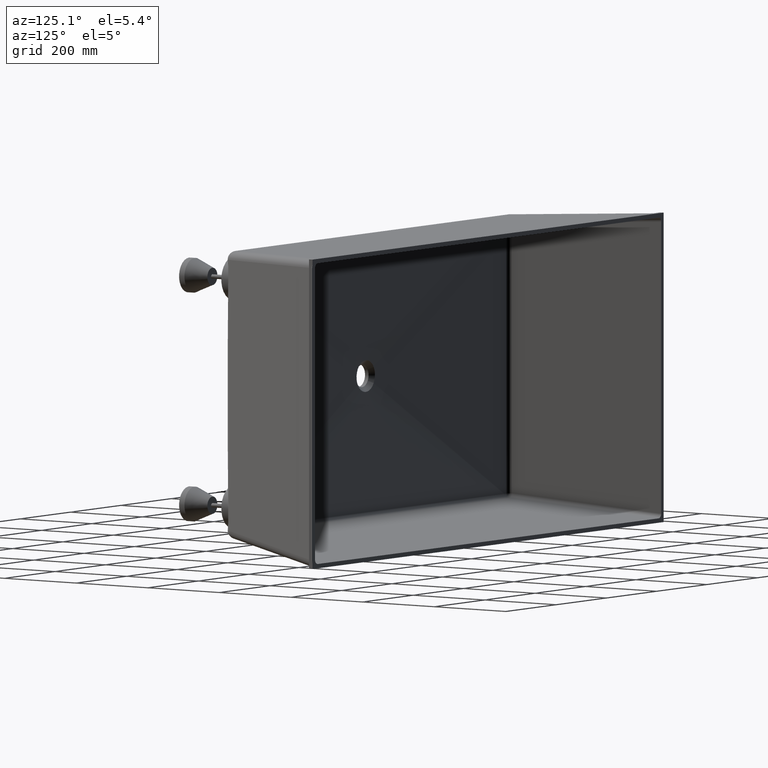
[diagram: clean part render]
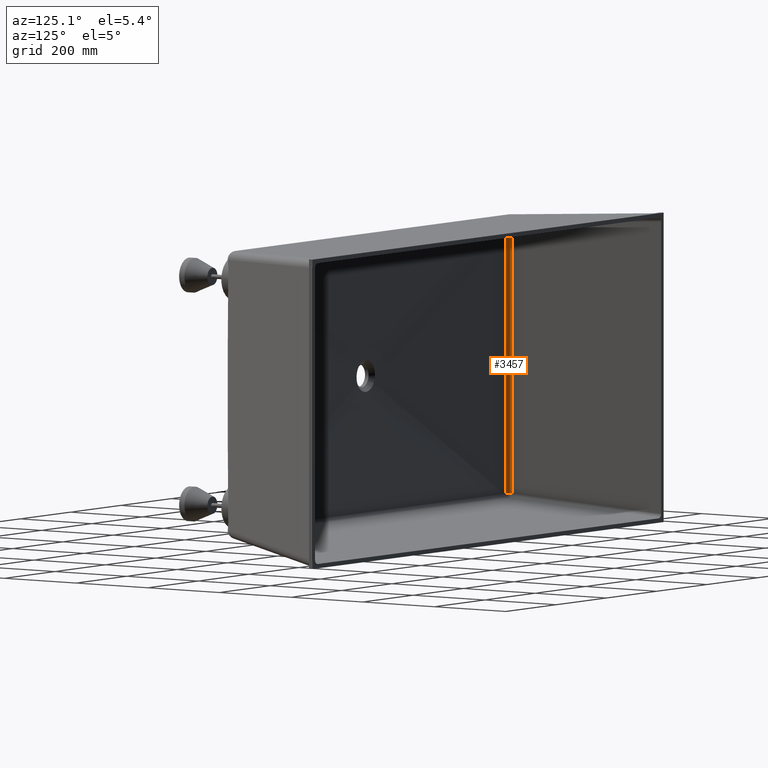
[diagram: same view with one face highlighted and labeled with its STEP entity id]
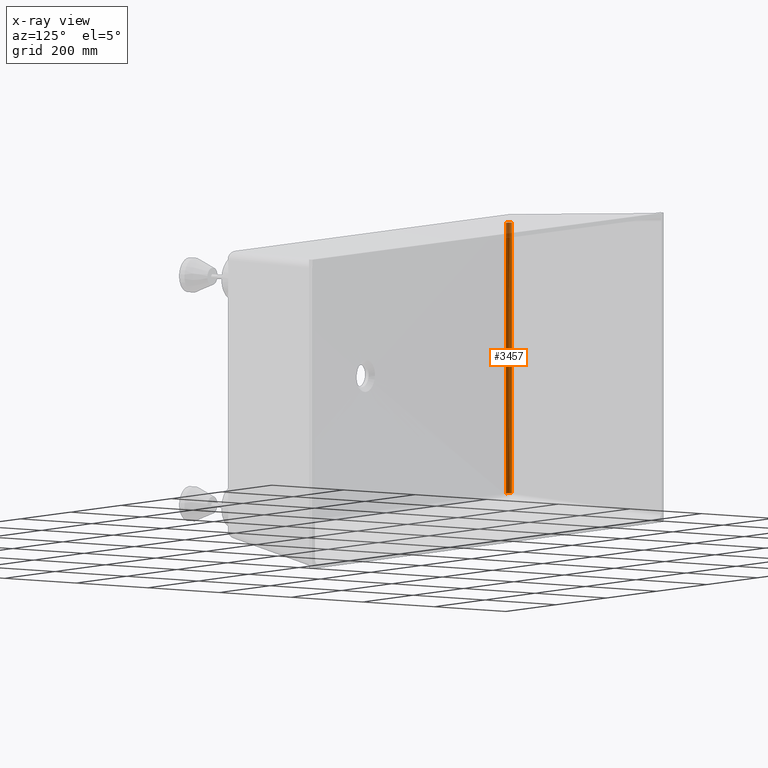
[diagram: x-ray of the same camera — body ghosted, the highlighted face saturated]
A machine part, auxiliary view. The second image highlights one B-rep face of the part: STEP entity #3457.
The next image is the same camera in x-ray: the body ghosted, the highlighted face saturated — about 6% of this face is hidden behind the body in this view.
In plain terms, the highlighted face is a freeform B-spline surface patch.
Its self-contained STEP definition (entity closure, byte-faithful):
#50 = EDGE_CURVE ( 'NONE', #7808, #3085, #7136, .T. ) ;
#440 = DIRECTION ( 'NONE',  ( 1.020781007932282800E-007, -8.635807327107351700E-006, 0.9999999999627063900 ) ) ;
#693 = CARTESIAN_POINT ( 'NONE',  ( -550.1141784327466000, -413.3405045896437900, 310.5604278837050700 ) ) ;
#858 = CARTESIAN_POINT ( 'NONE',  ( -550.1141676855836500, -413.3414137996292700, 205.2767003580649400 ) ) ;
#870 = CARTESIAN_POINT ( 'NONE',  ( -550.1141611342575300, -413.3419680418192600, 99.99297282787786400 ) ) ;
#911 = CARTESIAN_POINT ( 'NONE',  ( -550.1141613478429200, -413.3419499724873300, -5.290754701687279600 ) ) ;
#941 = DIRECTION ( 'NONE',  ( 0.0000000000000000000, -0.9999999999627113800, -8.635807324797160800E-006 ) ) ;
#1079 = CARTESIAN_POINT ( 'NONE',  ( -550.1141615542729800, -413.3419325085062000, -107.0473124301658500 ) ) ;
#1398 = CARTESIAN_POINT ( 'NONE',  ( -550.1141680456304400, -413.3413833396704100, -208.8038701590200200 ) ) ;
#1557 = CARTESIAN_POINT ( 'NONE',  ( -550.1141784327466000, -413.3405045896437300, -310.5604278837051900 ) ) ;
#1604 = CARTESIAN_POINT ( 'NONE',  ( -540.3422793518340100, -423.2197236096835100, -310.5605141962340700 ) ) ;
#1646 = CARTESIAN_POINT ( 'NONE',  ( -540.3428896732014000, -423.2202885190635600, -243.5201713989539200 ) ) ;
#1677 = CARTESIAN_POINT ( 'NONE',  ( -540.3433579782343900, -423.2207202013905200, -176.4798285986069000 ) ) ;
#1710 = CARTESIAN_POINT ( 'NONE',  ( -540.3436043541514700, -423.2209471511128000, -109.4394857970055000 ) ) ;
#1814 = CARTESIAN_POINT ( 'NONE',  ( -540.3438003562655500, -423.2211276988946900, -56.10615246397340200 ) ) ;
#1849 = CARTESIAN_POINT ( 'NONE',  ( -540.3438556956240300, -423.2211785725014600, -2.772819129610117000 ) ) ;
#1891 = CARTESIAN_POINT ( 'NONE',  ( -540.3437637616460700, -423.2210939390817000, 50.56051420394135900 ) ) ;
#1923 = CARTESIAN_POINT ( 'NONE',  ( -540.3436718276681200, -423.2210093056619400, 103.8938475374141700 ) ) ;
#1963 = CARTESIAN_POINT ( 'NONE',  ( -540.3434328695517500, -423.2207893935723200, 157.2271808706606200 ) ) ;
#1998 = CARTESIAN_POINT ( 'NONE',  ( -540.3430751654680100, -423.2204592235508500, 210.5605142020583000 ) ) ;
#2168 = CARTESIAN_POINT ( 'NONE',  ( -540.3428963134260800, -423.2202941385400500, 237.2271808676366900 ) ) ;
#2200 = CARTESIAN_POINT ( 'NONE',  ( -540.3426885173420300, -423.2201021596154600, 263.8938475328736200 ) ) ;
#2324 = CARTESIAN_POINT ( 'NONE',  ( -540.3424571824512000, -423.2198881611917600, 290.5605141977007400 ) ) ;
#2390 = CARTESIAN_POINT ( 'NONE',  ( -540.3423993487284600, -423.2198346615858800, 297.2271808639021600 ) ) ;
#2610 = CARTESIAN_POINT ( 'NONE',  ( -540.3422793518340100, -423.2197236096835100, 310.5605141962340100 ) ) ;
#2651 = CARTESIAN_POINT ( 'NONE',  ( -540.3423400437837900, -423.2197797857467100, 303.8938475300800500 ) ) ;
#2717 = CARTESIAN_POINT ( 'NONE',  ( -550.1141784327469400, -413.3405045896437300, 310.5604278837050700 ) ) ;
#2736 = CARTESIAN_POINT ( 'NONE',  ( -549.9999994333429600, -423.0000479392085100, 310.5605113133154900 ) ) ;
#2754 = CARTESIAN_POINT ( 'NONE',  ( -540.3422793518342400, -423.2197236096835100, 310.5605141962340100 ) ) ;
#2787 = CARTESIAN_POINT ( 'NONE',  ( -550.1141572984345200, -413.3422925524719200, 103.5201426261042600 ) ) ;
#2809 = CARTESIAN_POINT ( 'NONE',  ( -549.9999999389873400, -422.9999931917326400, 103.5405620196022200 ) ) ;
#2877 = CARTESIAN_POINT ( 'NONE',  ( -540.3441641310375900, -423.2214682178985800, 103.5201893882881900 ) ) ;
#2934 = CARTESIAN_POINT ( 'NONE',  ( -550.1141572982497800, -413.3422925680788500, -103.5201426261459300 ) ) ;
#2940 = ORIENTED_EDGE ( 'NONE', *, *, #3384, .T. ) ;
#3085 = VERTEX_POINT ( 'NONE', #4618 ) ;
#3115 = CARTESIAN_POINT ( 'NONE',  ( -550.0000000768899300, -422.9999932549379800, -103.5405620196423100 ) ) ;
#3142 = CARTESIAN_POINT ( 'NONE',  ( -540.3441642225419600, -423.2214682158182800, -103.5201893883299400 ) ) ;
#3165 = CARTESIAN_POINT ( 'NONE',  ( -550.1141784327466000, -413.3405045896436700, -310.5604278837051900 ) ) ;
#3200 = CARTESIAN_POINT ( 'NONE',  ( -540.3422793518340100, -423.2197236096834600, -310.5605141962341200 ) ) ;
#3369 = CARTESIAN_POINT ( 'NONE',  ( -549.9999994333427400, -423.0000479392084000, -310.5605113133156600 ) ) ;
#3384 = EDGE_CURVE ( 'NONE', #5100, #3085, #4221, .T. ) ;
#3425 = EDGE_CURVE ( 'NONE', #7808, #6032, #8624, .T. ) ;
#3457 = ADVANCED_FACE ( 'NONE', ( #5856 ), #5875, .F. ) ;
#4221 = B_SPLINE_CURVE_WITH_KNOTS ( 'NONE', 3,
 ( #2610, #2651, #2390, #2324, #2200, #2168, #1998, #1963, #1923, #1891, #1849, #1814, #1710, #1677, #1646, #1604 ),
 .UNSPECIFIED., .F., .F.,
 ( 4, 3, 3, 3, 3, 4 ),
 ( 0.0000000000000000000, 0.02000000000000077400, 0.1000000000001323900, 0.2600000000018211600, 0.4200000000038537400, 0.6211210284126004200 ),
 .UNSPECIFIED. ) ;
#4618 = CARTESIAN_POINT ( 'NONE',  ( -540.3422793518340100, -423.2197236096835100, -310.5605141962340700 ) ) ;
#5100 = VERTEX_POINT ( 'NONE', #5561 ) ;
#5561 = CARTESIAN_POINT ( 'NONE',  ( -540.3422793518340100, -423.2197236096835100, 310.5605141962340100 ) ) ;
#5628 = AXIS2_PLACEMENT_3D ( 'NONE', #9649, #9614, #9588 ) ;
#5674 = EDGE_CURVE ( 'NONE', #6032, #5100, #7520, .T. ) ;
#5856 = FACE_OUTER_BOUND ( 'NONE', #8740, .T. ) ;
#5875 =( BOUNDED_SURFACE ( )  B_SPLINE_SURFACE ( 3, 2, ( 
 ( #3200, #3369, #3165 ),
 ( #3142, #3115, #2934 ),
 ( #2877, #2809, #2787 ),
 ( #2754, #2736, #2717 ) ),
 .UNSPECIFIED., .F., .F., .F. ) 
 B_SPLINE_SURFACE_WITH_KNOTS ( ( 4, 4 ),
 ( 3, 3 ),
 ( 0.0000000000000000000, 0.6211208557742108300 ),
 ( 0.0000000000000000000, 1.000000000000000000 ),
 .UNSPECIFIED. ) 
 GEOMETRIC_REPRESENTATION_ITEM ( )  RATIONAL_B_SPLINE_SURFACE ( (
 ( 1.000000000000000000, 0.7192200982645947600, 1.000000000000000000),
 ( 1.000000000000000000, 0.7192908814497933600, 1.000000000000000000),
 ( 1.000000000000000000, 0.7192908814497925900, 1.000000000000000000),
 ( 1.000000000000000000, 0.7192200982645889900, 1.000000000000000000) ) ) 
 REPRESENTATION_ITEM ( '' )  SURFACE ( )  );
#6032 = VERTEX_POINT ( 'NONE', #8417 ) ;
#6234 = AXIS2_PLACEMENT_3D ( 'NONE', #7614, #440, #941 ) ;
#7136 = CIRCLE ( 'NONE', #6234, 10.00000000000002700 ) ;
#7435 = CARTESIAN_POINT ( 'NONE',  ( -550.1141784327466000, -413.3405045896437300, -310.5604278837051900 ) ) ;
#7520 = CIRCLE ( 'NONE', #5628, 10.00000000000002700 ) ;
#7614 = CARTESIAN_POINT ( 'NONE',  ( -540.1148769606696800, -413.2223095367822900, -310.5604278837051900 ) ) ;
#7808 = VERTEX_POINT ( 'NONE', #7435 ) ;
#8022 = ORIENTED_EDGE ( 'NONE', *, *, #5674, .T. ) ;
#8417 = CARTESIAN_POINT ( 'NONE',  ( -550.1141784327466000, -413.3405045896437900, 310.5604278837050700 ) ) ;
#8605 = ORIENTED_EDGE ( 'NONE', *, *, #50, .F. ) ;
#8624 = B_SPLINE_CURVE_WITH_KNOTS ( 'NONE', 3,
 ( #1557, #1398, #1079, #911, #870, #858, #693 ),
 .UNSPECIFIED., .F., .F.,
 ( 4, 3, 4 ),
 ( 0.0000000000000000000, 0.3052696731854401800, 0.6211208557744116700 ),
 .UNSPECIFIED. ) ;
#8740 = EDGE_LOOP ( 'NONE', ( #8605, #9513, #8022, #2940 ) ) ;
#9513 = ORIENTED_EDGE ( 'NONE', *, *, #3425, .T. ) ;
#9588 = DIRECTION ( 'NONE',  ( 0.0000000000000000000, -0.9999999999627113800, 8.635807324797160800E-006 ) ) ;
#9614 = DIRECTION ( 'NONE',  ( -1.020781007932282800E-007, 8.635807327107351700E-006, 0.9999999999627063900 ) ) ;
#9649 = CARTESIAN_POINT ( 'NONE',  ( -540.1148769606696800, -413.2223095367822900, 310.5604278837050700 ) ) ;